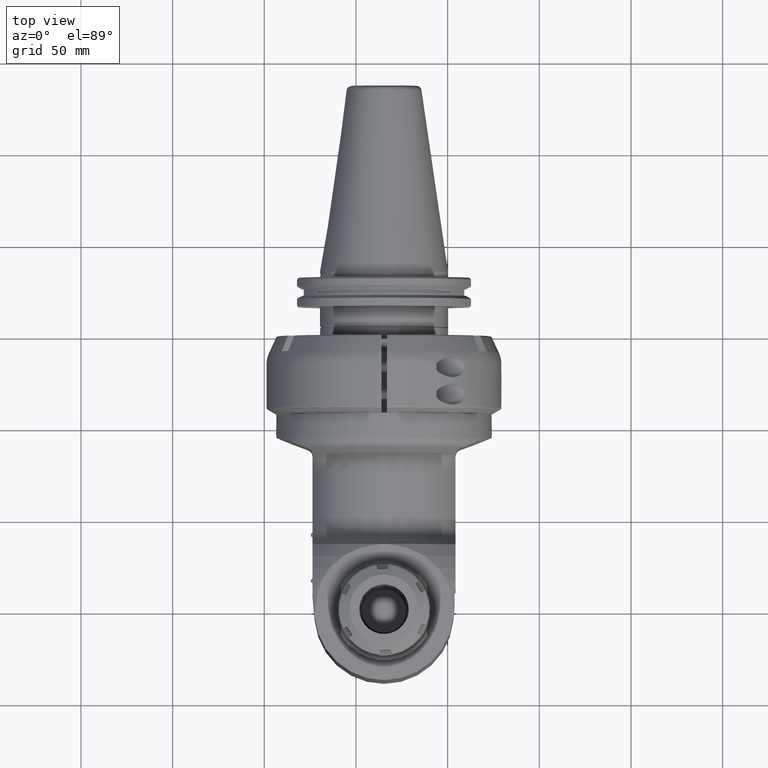
[diagram: clean part render]
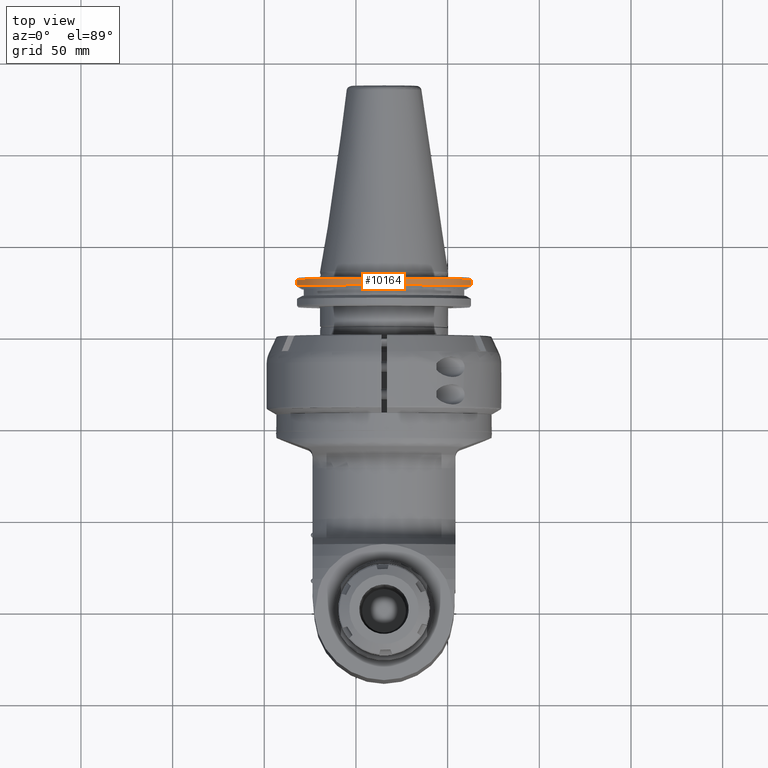
[diagram: same view with one face highlighted and labeled with its STEP entity id]
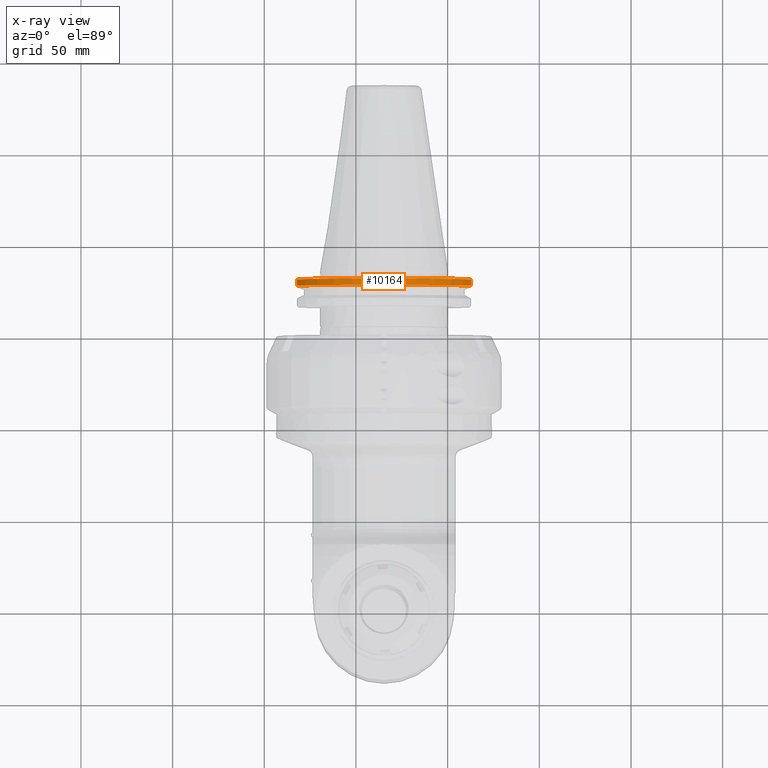
[diagram: x-ray of the same camera — body ghosted, the highlighted face saturated]
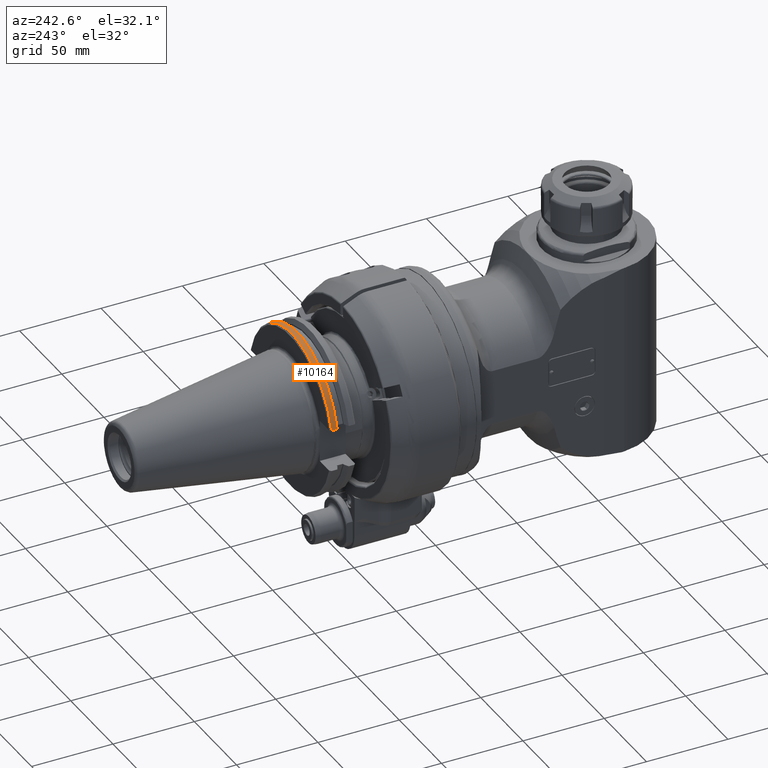
[diagram: same view with one face highlighted and labeled with its STEP entity id]
A machine part, top view. The second image highlights one B-rep face of the part: STEP entity #10164.
The next image is the same camera in x-ray: the body ghosted, the highlighted face saturated — about 0% of this face is hidden behind the body in this view.
A second angle (auxiliary view) of the same face is appended — the face is thin or edge-on in the first view.
In plain terms, the highlighted cylindrical surface (partial cylindrical patch) has radius 49.2125 mm, axis along (0, -1, 0).
Its self-contained STEP definition (entity closure, byte-faithful):
#849=CYLINDRICAL_SURFACE('',#11348,49.2125);
#1337=FACE_OUTER_BOUND('',#1995,.T.);
#1995=EDGE_LOOP('',(#8740,#8741,#8742,#8743));
#2615=LINE('',#20180,#3249);
#2622=LINE('',#20209,#3256);
#3249=VECTOR('',#13931,3.487333230926);
#3256=VECTOR('',#13950,3.487333230926);
#3846=CIRCLE('',#11347,49.2125);
#3847=CIRCLE('',#11349,49.2125);
#4719=VERTEX_POINT('',#20174);
#4721=VERTEX_POINT('',#20179);
#4730=VERTEX_POINT('',#20202);
#4731=VERTEX_POINT('',#20208);
#6091=EDGE_CURVE('',#4721,#4719,#2615,.T.);
#6103=EDGE_CURVE('',#4730,#4719,#3846,.T.);
#6104=EDGE_CURVE('',#4730,#4731,#2622,.T.);
#6105=EDGE_CURVE('',#4721,#4731,#3847,.T.);
#8740=ORIENTED_EDGE('',*,*,#6103,.F.);
#8741=ORIENTED_EDGE('',*,*,#6104,.T.);
#8742=ORIENTED_EDGE('',*,*,#6105,.F.);
#8743=ORIENTED_EDGE('',*,*,#6091,.T.);
#10164=ADVANCED_FACE('',(#1337),#849,.T.);
#11347=AXIS2_PLACEMENT_3D('',#20206,#13946,#13947);
#11348=AXIS2_PLACEMENT_3D('',#20207,#13948,#13949);
#11349=AXIS2_PLACEMENT_3D('',#20210,#13951,#13952);
#13931=DIRECTION('',(-1.426247169675E-14,-1.,-4.482491104692E-14));
#13946=DIRECTION('center_axis',(0.,-1.,0.));
#13947=DIRECTION('ref_axis',(0.964734250878399,0.,0.2632258064516));
#13948=DIRECTION('center_axis',(0.,-1.,0.));
#13949=DIRECTION('ref_axis',(0.,0.,1.));
#13950=DIRECTION('',(0.,1.,-1.731871563176E-14));
#13951=DIRECTION('center_axis',(0.,1.,0.));
#13952=DIRECTION('ref_axis',(0.,0.,1.));
#20174=CARTESIAN_POINT('',(-47.47698432135,69.85016653831,12.954));
#20179=CARTESIAN_POINT('',(-47.47698432135,73.33749976923,12.954));
#20180=CARTESIAN_POINT('',(-47.47698432135,73.33749976923,12.954));
#20202=CARTESIAN_POINT('',(47.47698432135,69.85016653831,12.954));
#20206=CARTESIAN_POINT('Origin',(0.,69.85016653831,0.));
#20207=CARTESIAN_POINT('Origin',(0.,61.02764551281,0.));
#20208=CARTESIAN_POINT('',(47.47698432135,73.33749976923,12.954));
#20209=CARTESIAN_POINT('',(47.47698432135,69.85016653831,12.954));
#20210=CARTESIAN_POINT('Origin',(0.,73.33749976923,0.));